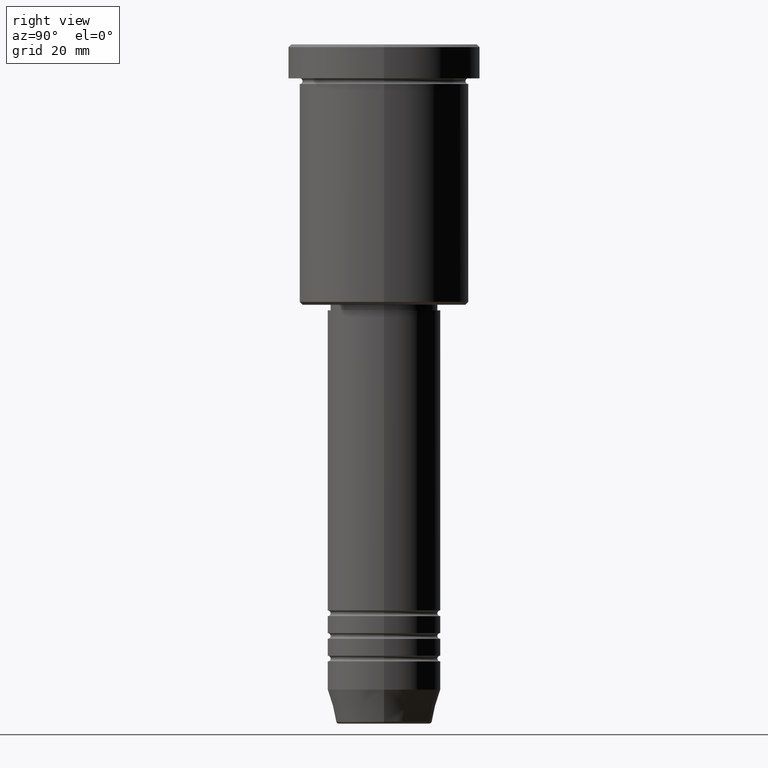
[diagram: clean part render]
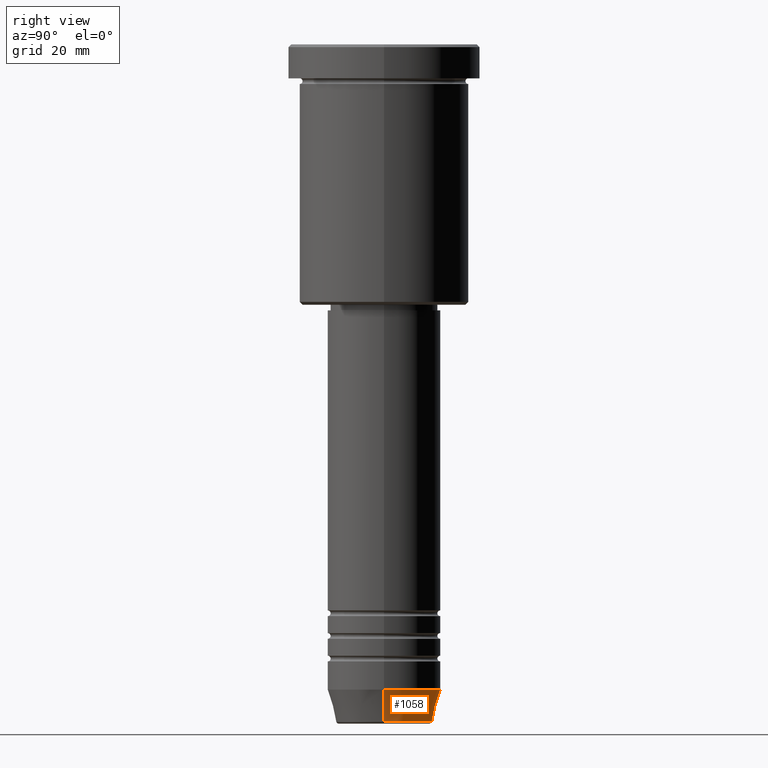
[diagram: same view with one face highlighted and labeled with its STEP entity id]
A machine part, right view. The second image highlights one B-rep face of the part: STEP entity #1058.
In plain terms, the highlighted conical surface has half-angle 15 deg.
Its self-contained STEP definition (entity closure, byte-faithful):
#6 = DIRECTION ( 'NONE',  ( 0.2588190451025214056, 0.000000000000000000, 0.9659258262890680902 ) ) ;
#29 = ORIENTED_EDGE ( 'NONE', *, *, #921, .T. ) ;
#48 = ORIENTED_EDGE ( 'NONE', *, *, #565, .F. ) ;
#76 = AXIS2_PLACEMENT_3D ( 'NONE', #355, #1017, #723 ) ;
#84 = ORIENTED_EDGE ( 'NONE', *, *, #1124, .T. ) ;
#103 = DIRECTION ( 'NONE',  ( -0.000000000000000000, -0.000000000000000000, 1.000000000000000000 ) ) ;
#108 = DIRECTION ( 'NONE',  ( 1.000000000000000000, 0.000000000000000000, 0.000000000000000000 ) ) ;
#112 = AXIS2_PLACEMENT_3D ( 'NONE', #559, #936, #108 ) ;
#116 = CARTESIAN_POINT ( 'NONE',  ( 10.00000000000000178, 0.000000000000000000, -113.9999999999999858 ) ) ;
#141 = DIRECTION ( 'NONE',  ( -0.2588190451025214056, 3.169619151431772953E-17, 0.9659258262890680902 ) ) ;
#163 = LINE ( 'NONE', #956, #270 ) ;
#210 = VECTOR ( 'NONE', #6, 1000.000000000000000 ) ;
#229 = CONICAL_SURFACE ( 'NONE', #112, 10.00000000000000178, 0.2617993877991501295 ) ;
#270 = VECTOR ( 'NONE', #141, 1000.000000000000000 ) ;
#290 = CIRCLE ( 'NONE', #76, 8.491604264568312743 ) ;
#331 = CARTESIAN_POINT ( 'NONE',  ( -8.491604264568312743, 1.132284198685156781E-15, -119.6294095225512564 ) ) ;
#341 = CARTESIAN_POINT ( 'NONE',  ( 8.491604264568312743, 0.000000000000000000, -119.6294095225512564 ) ) ;
#347 = ORIENTED_EDGE ( 'NONE', *, *, #1004, .F. ) ;
#355 = CARTESIAN_POINT ( 'NONE',  ( 0.000000000000000000, 0.000000000000000000, -119.6294095225512564 ) ) ;
#418 = VERTEX_POINT ( 'NONE', #843 ) ;
#469 = DIRECTION ( 'NONE',  ( 1.000000000000000000, 0.000000000000000000, 0.000000000000000000 ) ) ;
#538 = VERTEX_POINT ( 'NONE', #636 ) ;
#559 = CARTESIAN_POINT ( 'NONE',  ( 0.000000000000000000, 0.000000000000000000, -113.9999999999999858 ) ) ;
#565 = EDGE_CURVE ( 'NONE', #418, #538, #895, .T. ) ;
#636 = CARTESIAN_POINT ( 'NONE',  ( -10.00000000000000178, 1.224646799147353454E-15, -113.9999999999999858 ) ) ;
#681 = VERTEX_POINT ( 'NONE', #341 ) ;
#723 = DIRECTION ( 'NONE',  ( 1.000000000000000000, 0.000000000000000000, 0.000000000000000000 ) ) ;
#745 = FACE_OUTER_BOUND ( 'NONE', #1043, .T. ) ;
#762 = VERTEX_POINT ( 'NONE', #331 ) ;
#843 = CARTESIAN_POINT ( 'NONE',  ( 10.00000000000000178, 0.000000000000000000, -113.9999999999999858 ) ) ;
#874 = AXIS2_PLACEMENT_3D ( 'NONE', #935, #103, #469 ) ;
#895 = CIRCLE ( 'NONE', #874, 10.00000000000000178 ) ;
#921 = EDGE_CURVE ( 'NONE', #681, #762, #290, .T. ) ;
#935 = CARTESIAN_POINT ( 'NONE',  ( 0.000000000000000000, 0.000000000000000000, -113.9999999999999858 ) ) ;
#936 = DIRECTION ( 'NONE',  ( -0.000000000000000000, -0.000000000000000000, 1.000000000000000000 ) ) ;
#956 = CARTESIAN_POINT ( 'NONE',  ( -10.00000000000000178, 1.224646799147353454E-15, -113.9999999999999858 ) ) ;
#1004 = EDGE_CURVE ( 'NONE', #681, #418, #1047, .T. ) ;
#1017 = DIRECTION ( 'NONE',  ( -0.000000000000000000, -0.000000000000000000, 1.000000000000000000 ) ) ;
#1043 = EDGE_LOOP ( 'NONE', ( #29, #84, #48, #347 ) ) ;
#1047 = LINE ( 'NONE', #116, #210 ) ;
#1058 = ADVANCED_FACE ( 'NONE', ( #745 ), #229, .T. ) ;
#1124 = EDGE_CURVE ( 'NONE', #762, #538, #163, .T. ) ;